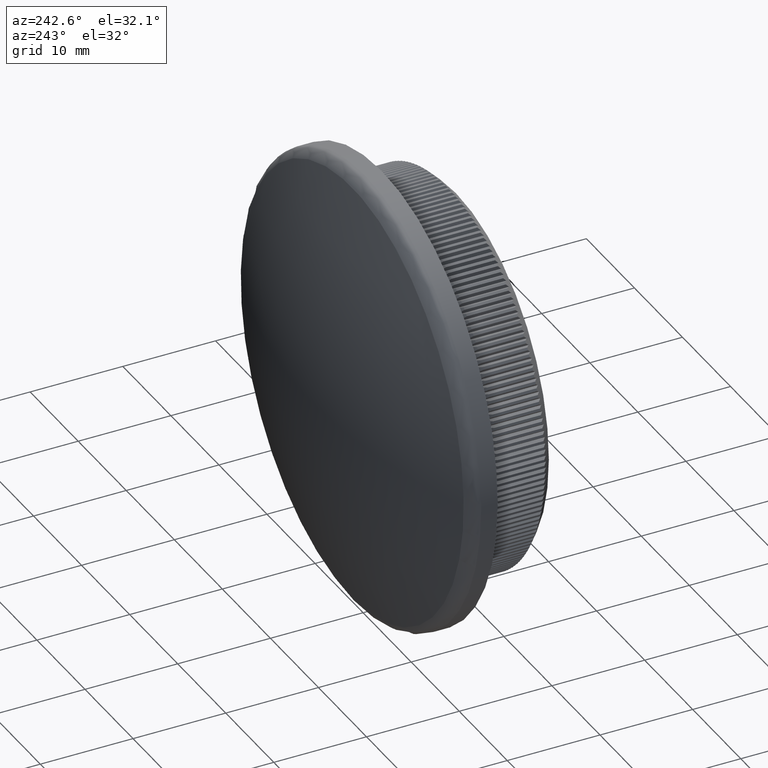
[diagram: clean part render]
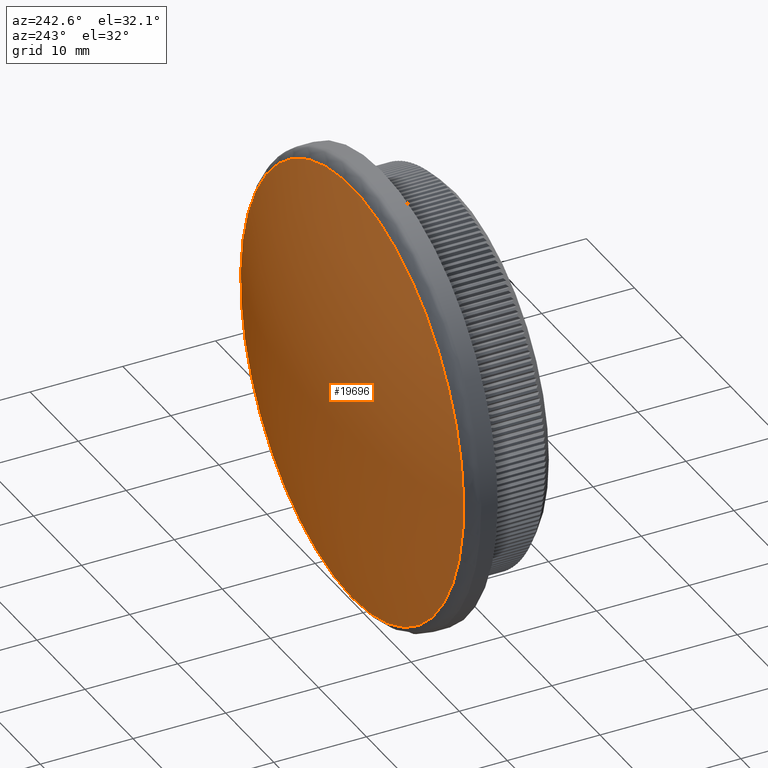
[diagram: same view with one face highlighted and labeled with its STEP entity id]
A machine part, auxiliary view. The second image highlights one B-rep face of the part: STEP entity #19696.
In plain terms, the highlighted spherical surface has radius 64.3949 mm.
Its self-contained STEP definition (entity closure, byte-faithful):
#1142 = VERTEX_POINT ( 'NONE', #20195 ) ;
#2362 = EDGE_LOOP ( 'NONE', ( #7637 ) ) ;
#5886 = AXIS2_PLACEMENT_3D ( 'NONE', #28763, #13628, #6191 ) ;
#5968 = FACE_OUTER_BOUND ( 'NONE', #2362, .T. ) ;
#6191 = DIRECTION ( 'NONE',  ( 0.0000000000000000000, 0.0000000000000000000, -1.000000000000000000 ) ) ;
#6599 = AXIS2_PLACEMENT_3D ( 'NONE', #23047, #27796, #10057 ) ;
#7637 = ORIENTED_EDGE ( 'NONE', *, *, #15310, .T. ) ;
#10057 = DIRECTION ( 'NONE',  ( 1.000000000000000000, 0.0000000000000000000, 0.0000000000000000000 ) ) ;
#10689 = SPHERICAL_SURFACE ( 'NONE', #6599, 64.39494680851078100 ) ;
#13628 = DIRECTION ( 'NONE',  ( 0.0000000000000000000, 1.000000000000000000, 0.0000000000000000000 ) ) ;
#15310 = EDGE_CURVE ( 'NONE', #1142, #1142, #20657, .T. ) ;
#19696 = ADVANCED_FACE ( 'NONE', ( #5968 ), #10689, .T. ) ;
#20195 = CARTESIAN_POINT ( 'NONE',  ( 0.0000000000000000000, 11.17937736945556700, -23.19018648117216600 ) ) ;
#20657 = CIRCLE ( 'NONE', #5886, 23.19018648117216600 ) ;
#23047 = CARTESIAN_POINT ( 'NONE',  ( 0.0000000000000000000, -48.89494680851078800, 0.0000000000000000000 ) ) ;
#27796 = DIRECTION ( 'NONE',  ( 0.0000000000000000000, 0.0000000000000000000, 1.000000000000000000 ) ) ;
#28763 = CARTESIAN_POINT ( 'NONE',  ( 0.0000000000000000000, 11.17937736945556700, 0.0000000000000000000 ) ) ;